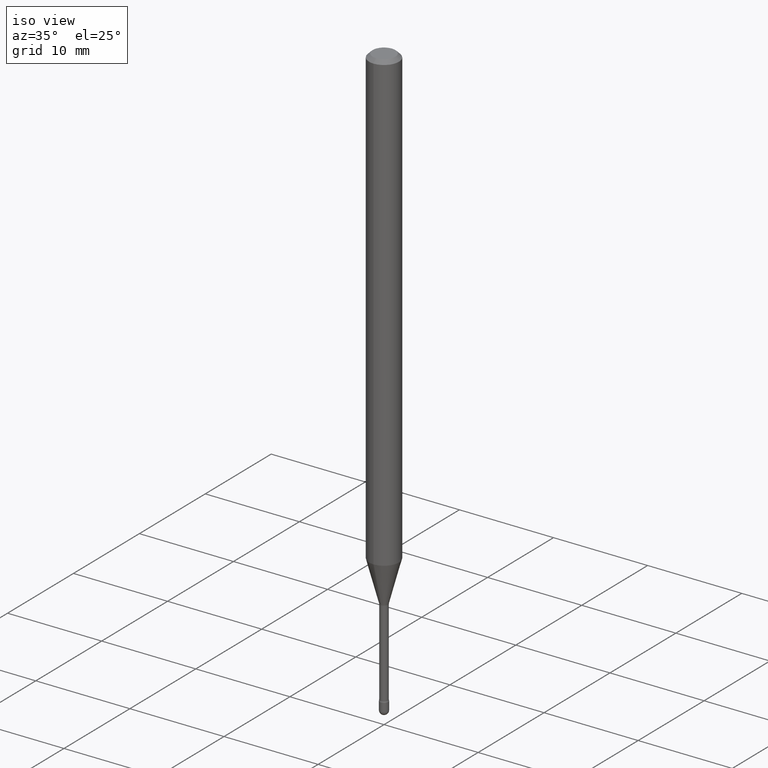
[diagram: clean part render]
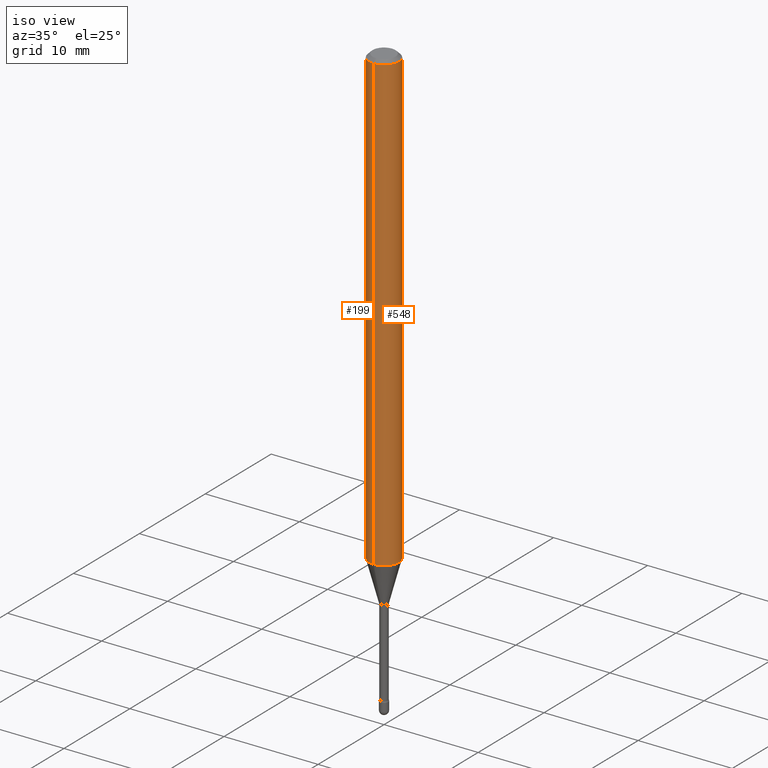
[diagram: same view with one multi-face feature highlighted, each face labeled with its STEP entity id]
A machine part, iso view. The highlighted faces form ONE feature: a constant-radius fillet chain: 2 tangent blend faces with common blend radius 1.5875 mm. The faces share edges in the B-rep.
Their STEP definitions:
[1] entity #548 (Cylinder):
#2 = DIRECTION ( 'NONE',  ( -2.445474670097060204E-29, 3.491472941387518154E-15, 1.000000000000000000 ) ) ;
#7 = DIRECTION ( 'NONE',  ( -6.982962677686265922E-15, -1.000000000000000000, 3.483106191921935554E-15 ) ) ;
#16 = AXIS2_PLACEMENT_3D ( 'NONE', #442, #95, #7 ) ;
#19 = ORIENTED_EDGE ( 'NONE', *, *, #427, .T. ) ;
#22 = VECTOR ( 'NONE', #464, 39.37007874015748143 ) ;
#55 = EDGE_LOOP ( 'NONE', ( #310, #19, #270, #345 ) ) ;
#59 = LINE ( 'NONE', #543, #22 ) ;
#63 = VERTEX_POINT ( 'NONE', #308 ) ;
#80 = EDGE_CURVE ( 'NONE', #246, #307, #260, .T. ) ;
#95 = DIRECTION ( 'NONE',  ( -2.445474670097060204E-29, 3.491472941387517759E-15, 1.000000000000000000 ) ) ;
#104 = EDGE_CURVE ( 'NONE', #307, #503, #439, .T. ) ;
#110 = DIRECTION ( 'NONE',  ( -6.982962677686265922E-15, -1.000000000000000000, 4.370956789862821150E-15 ) ) ;
#113 = CARTESIAN_POINT ( 'NONE',  ( -1.169113584055446105E-44, 1.669184350826100908E-30, 4.780733988912460139E-16 ) ) ;
#123 = AXIS2_PLACEMENT_3D ( 'NONE', #373, #148, #110 ) ;
#148 = DIRECTION ( 'NONE',  ( -2.445474670097060204E-29, 3.491472941387517759E-15, 1.000000000000000000 ) ) ;
#151 = VECTOR ( 'NONE', #2, 39.37007874015748143 ) ;
#156 = CYLINDRICAL_SURFACE ( 'NONE', #466, 0.06250000000000000000 ) ;
#183 = CIRCLE ( 'NONE', #123, 0.06250000000000000000 ) ;
#220 = CARTESIAN_POINT ( 'NONE',  ( -4.364351673553916201E-16, -0.06250000000000000000, 6.962904577279658492E-16 ) ) ;
#246 = VERTEX_POINT ( 'NONE', #561 ) ;
#260 = LINE ( 'NONE', #220, #151 ) ;
#270 = ORIENTED_EDGE ( 'NONE', *, *, #104, .F. ) ;
#307 = VERTEX_POINT ( 'NONE', #430 ) ;
#308 = CARTESIAN_POINT ( 'NONE',  ( 4.440892098501091590E-16, 0.06249999999999333172, -1.908139060311454083 ) ) ;
#310 = ORIENTED_EDGE ( 'NONE', *, *, #436, .T. ) ;
#345 = ORIENTED_EDGE ( 'NONE', *, *, #80, .F. ) ;
#373 = CARTESIAN_POINT ( 'NONE',  ( 4.666305739014466842E-29, -6.662215897482046278E-15, -1.908139060311453861 ) ) ;
#417 = FACE_OUTER_BOUND ( 'NONE', #55, .T. ) ;
#422 = DIRECTION ( 'NONE',  ( -2.445474670097060204E-29, 3.491472941387517759E-15, 1.000000000000000000 ) ) ;
#427 = EDGE_CURVE ( 'NONE', #63, #503, #59, .T. ) ;
#430 = CARTESIAN_POINT ( 'NONE',  ( -4.364351673553912750E-16, -0.06250000000000005551, -0.01499999999999986587 ) ) ;
#436 = EDGE_CURVE ( 'NONE', #246, #63, #183, .T. ) ;
#439 = CIRCLE ( 'NONE', #16, 0.06250000000000000000 ) ;
#442 = CARTESIAN_POINT ( 'NONE',  ( 3.668212005145610783E-31, -5.237209412081306024E-17, -0.01500000000000008271 ) ) ;
#461 = DIRECTION ( 'NONE',  ( -6.982962677686265922E-15, -1.000000000000000000, 3.491472941387516576E-15 ) ) ;
#464 = DIRECTION ( 'NONE',  ( -2.445474670097060204E-29, 3.491472941387518154E-15, 1.000000000000000000 ) ) ;
#466 = AXIS2_PLACEMENT_3D ( 'NONE', #113, #422, #461 ) ;
#503 = VERTEX_POINT ( 'NONE', #550 ) ;
#543 = CARTESIAN_POINT ( 'NONE',  ( 4.440892098500625669E-16, 0.06250000000000000000, 2.598563400545262279E-16 ) ) ;
#548 = ADVANCED_FACE ( 'NONE', ( #417 ), #156, .T. ) ;
#550 = CARTESIAN_POINT ( 'NONE',  ( 4.440892098501094548E-16, 0.06249999999999995143, -0.01500000000000030129 ) ) ;
#561 = CARTESIAN_POINT ( 'NONE',  ( -4.364351673553452252E-16, -0.06250000000000668909, -1.908139060311453417 ) ) ;
[2] entity #199 (Cylinder):
#2 = DIRECTION ( 'NONE',  ( -2.445474670097060204E-29, 3.491472941387518154E-15, 1.000000000000000000 ) ) ;
#10 = AXIS2_PLACEMENT_3D ( 'NONE', #102, #57, #226 ) ;
#22 = VECTOR ( 'NONE', #464, 39.37007874015748143 ) ;
#49 = ORIENTED_EDGE ( 'NONE', *, *, #223, .F. ) ;
#57 = DIRECTION ( 'NONE',  ( -2.445474670097060204E-29, 3.491472941387517759E-15, 1.000000000000000000 ) ) ;
#58 = ORIENTED_EDGE ( 'NONE', *, *, #427, .F. ) ;
#59 = LINE ( 'NONE', #543, #22 ) ;
#60 = DIRECTION ( 'NONE',  ( -6.982962677686265922E-15, -1.000000000000000000, 3.483106191921935554E-15 ) ) ;
#61 = EDGE_LOOP ( 'NONE', ( #58, #127, #73, #49 ) ) ;
#63 = VERTEX_POINT ( 'NONE', #308 ) ;
#73 = ORIENTED_EDGE ( 'NONE', *, *, #80, .T. ) ;
#80 = EDGE_CURVE ( 'NONE', #246, #307, #260, .T. ) ;
#99 = DIRECTION ( 'NONE',  ( -2.445474670097060204E-29, 3.491472941387517759E-15, 1.000000000000000000 ) ) ;
#102 = CARTESIAN_POINT ( 'NONE',  ( -1.169113584055446105E-44, 1.669184350826100908E-30, 4.780733988912460139E-16 ) ) ;
#111 = EDGE_CURVE ( 'NONE', #63, #246, #214, .T. ) ;
#127 = ORIENTED_EDGE ( 'NONE', *, *, #111, .T. ) ;
#139 = FACE_OUTER_BOUND ( 'NONE', #61, .T. ) ;
#151 = VECTOR ( 'NONE', #2, 39.37007874015748143 ) ;
#174 = CARTESIAN_POINT ( 'NONE',  ( 4.666305739014466842E-29, -6.662215897482046278E-15, -1.908139060311453861 ) ) ;
#180 = DIRECTION ( 'NONE',  ( -6.982962677686265922E-15, -1.000000000000000000, 4.370956789862821150E-15 ) ) ;
#199 = ADVANCED_FACE ( 'NONE', ( #139 ), #451, .T. ) ;
#214 = CIRCLE ( 'NONE', #332, 0.06250000000000000000 ) ;
#220 = CARTESIAN_POINT ( 'NONE',  ( -4.364351673553916201E-16, -0.06250000000000000000, 6.962904577279658492E-16 ) ) ;
#223 = EDGE_CURVE ( 'NONE', #503, #307, #256, .T. ) ;
#226 = DIRECTION ( 'NONE',  ( -6.982962677686265922E-15, -1.000000000000000000, 3.491472941387516576E-15 ) ) ;
#246 = VERTEX_POINT ( 'NONE', #561 ) ;
#256 = CIRCLE ( 'NONE', #555, 0.06250000000000000000 ) ;
#260 = LINE ( 'NONE', #220, #151 ) ;
#307 = VERTEX_POINT ( 'NONE', #430 ) ;
#308 = CARTESIAN_POINT ( 'NONE',  ( 4.440892098501091590E-16, 0.06249999999999333172, -1.908139060311454083 ) ) ;
#318 = CARTESIAN_POINT ( 'NONE',  ( 3.668212005145610783E-31, -5.237209412081306024E-17, -0.01500000000000008271 ) ) ;
#332 = AXIS2_PLACEMENT_3D ( 'NONE', #174, #99, #180 ) ;
#427 = EDGE_CURVE ( 'NONE', #63, #503, #59, .T. ) ;
#430 = CARTESIAN_POINT ( 'NONE',  ( -4.364351673553912750E-16, -0.06250000000000005551, -0.01499999999999986587 ) ) ;
#451 = CYLINDRICAL_SURFACE ( 'NONE', #10, 0.06250000000000000000 ) ;
#464 = DIRECTION ( 'NONE',  ( -2.445474670097060204E-29, 3.491472941387518154E-15, 1.000000000000000000 ) ) ;
#503 = VERTEX_POINT ( 'NONE', #550 ) ;
#540 = DIRECTION ( 'NONE',  ( -2.445474670097060204E-29, 3.491472941387517759E-15, 1.000000000000000000 ) ) ;
#543 = CARTESIAN_POINT ( 'NONE',  ( 4.440892098500625669E-16, 0.06250000000000000000, 2.598563400545262279E-16 ) ) ;
#550 = CARTESIAN_POINT ( 'NONE',  ( 4.440892098501094548E-16, 0.06249999999999995143, -0.01500000000000030129 ) ) ;
#555 = AXIS2_PLACEMENT_3D ( 'NONE', #318, #540, #60 ) ;
#561 = CARTESIAN_POINT ( 'NONE',  ( -4.364351673553452252E-16, -0.06250000000000668909, -1.908139060311453417 ) ) ;